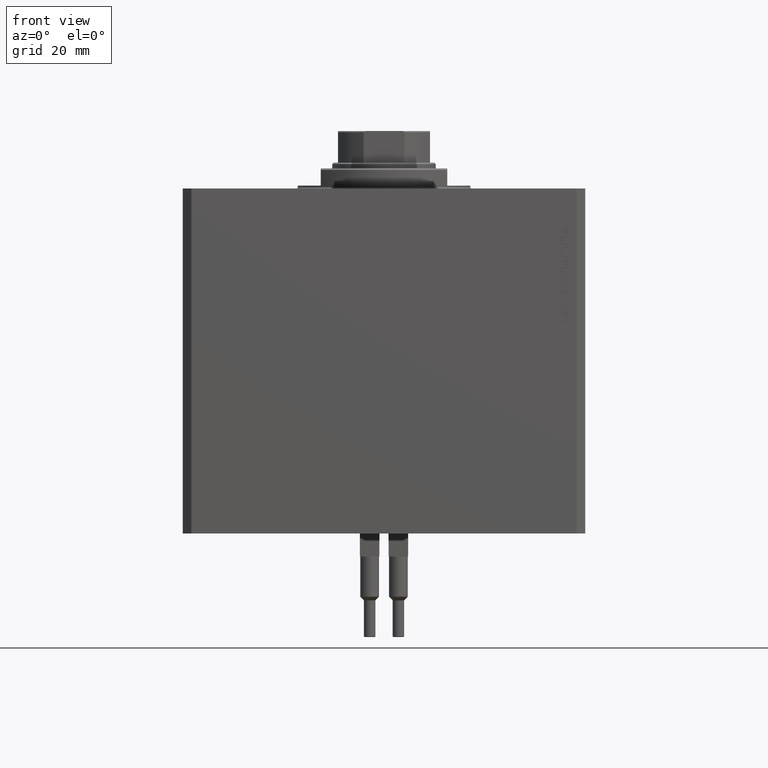
[diagram: clean part render]
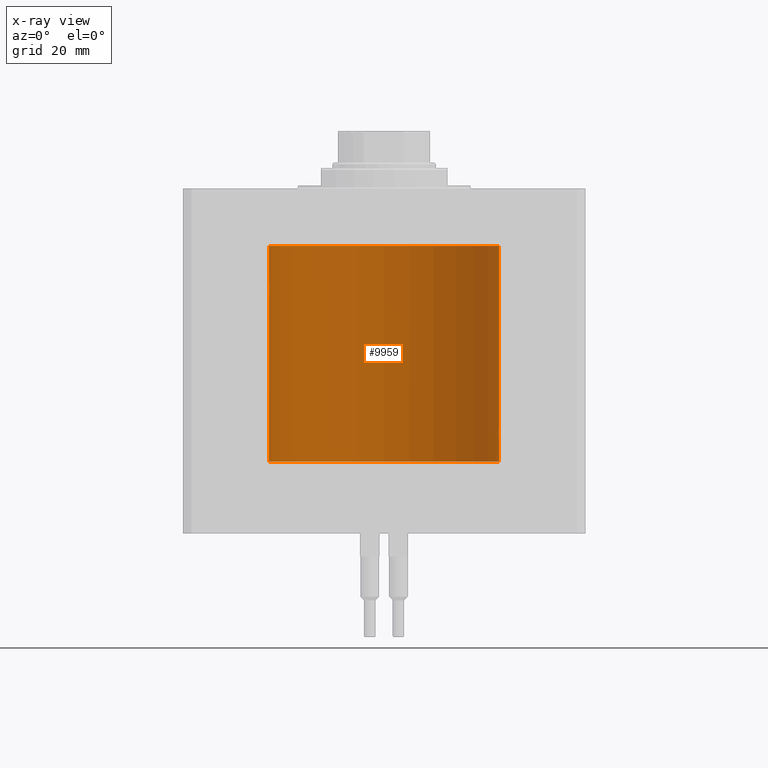
[diagram: x-ray — body ghosted, one internal face saturated and labeled with its STEP entity id]
A machine part, front view, then the same camera in x-ray: the body is ghosted and one INTERNAL B-rep face — a face not visible from any outside direction — is saturated and labeled: STEP entity #9959.
In plain terms, the highlighted cylindrical surface (partial cylindrical patch) has radius 40 mm, axis along (0, 0, 1).
Its self-contained STEP definition (entity closure, byte-faithful):
#313 = CARTESIAN_POINT ( 'NONE',  ( 40.00000000000000000, -7.123019543693126097E-24, -82.99999999999998579 ) ) ;
#870 = CARTESIAN_POINT ( 'NONE',  ( -39.96843077430287394, 1.590532281203076215, -36.21950461315501002 ) ) ;
#1033 = EDGE_CURVE ( 'NONE', #13867, #18875, #9057, .T. ) ;
#1115 = CARTESIAN_POINT ( 'NONE',  ( -39.97824670274066960, 1.322236164346118237, -33.49377550898345390 ) ) ;
#1345 = CARTESIAN_POINT ( 'NONE',  ( -39.98755980670525645, 1.003394358445550694, -36.73498561931656781 ) ) ;
#1843 = DIRECTION ( 'NONE',  ( 1.000000000000000000, 0.000000000000000000, 0.000000000000000000 ) ) ;
#2130 = LINE ( 'NONE', #16945, #42533 ) ;
#2531 = CARTESIAN_POINT ( 'NONE',  ( 39.99999999999999289, 0.1321969090936832014, -87.00000000000001421 ) ) ;
#2768 = CARTESIAN_POINT ( 'NONE',  ( 39.98759288254257172, 1.002119990237823499, -86.73575586470111887 ) ) ;
#3020 = CARTESIAN_POINT ( 'NONE',  ( 39.94996871087634105, 2.000000000000458300, -84.99999999999998579 ) ) ;
#3258 = VERTEX_POINT ( 'NONE', #35564 ) ;
#3835 = CARTESIAN_POINT ( 'NONE',  ( 40.00000000000000000, 0.000000000000000000, -95.00000000000000000 ) ) ;
#3885 = B_SPLINE_CURVE_WITH_KNOTS ( 'NONE', 3,
 ( #41900, #46042, #45545, #5243, #12286, #27582, #23207, #5006, #1115, #5490, #41657, #15925, #46281, #8642, #30737, #42387, #23938, #16163, #35096, #870, #23449, #19809, #8395, #1345, #34137, #30973, #30503, #42627, #12528, #31468 ),
 .UNSPECIFIED., .F., .F.,
 ( 4, 2, 2, 2, 2, 2, 2, 2, 2, 2, 2, 2, 2, 2, 4 ),
 ( 3.087105484439743043E-19, 0.0003908679763826832377, 0.0007817359527653661502, 0.001172603929148049009, 0.001563471905530731867, 0.002345207858296083706, 0.003126943811061435544, 0.003517811787444111681, 0.003908679763826786516, 0.004299547740209463086, 0.004690415716592138788, 0.005081283692974815358, 0.005472151669357490193, 0.005863019645740165896, 0.006253887622122840731 ),
 .UNSPECIFIED. ) ;
#4066 = ORIENTED_EDGE ( 'NONE', *, *, #10938, .T. ) ;
#5006 = CARTESIAN_POINT ( 'NONE',  ( -39.98155931191828927, 1.219319673654558844, -33.40929441127704536 ) ) ;
#5171 = AXIS2_PLACEMENT_3D ( 'NONE', #15923, #34380, #1843 ) ;
#5243 = CARTESIAN_POINT ( 'NONE',  ( -39.99685289554154366, 0.5177847365437173721, -33.06379604364708769 ) ) ;
#5490 = CARTESIAN_POINT ( 'NONE',  ( -39.96845582698919941, 1.598940400393649819, -33.77058047739597413 ) ) ;
#6402 = ORIENTED_EDGE ( 'NONE', *, *, #21208, .T. ) ;
#6409 = EDGE_CURVE ( 'NONE', #31013, #42362, #2130, .T. ) ;
#6442 = VECTOR ( 'NONE', #30565, 1000.000000000000000 ) ;
#6452 = AXIS2_PLACEMENT_3D ( 'NONE', #30622, #42278, #20171 ) ;
#6652 = CARTESIAN_POINT ( 'NONE',  ( 40.00000000000000000, 3.022137594547156248E-17, -87.00000000000000000 ) ) ;
#6881 = CARTESIAN_POINT ( 'NONE',  ( 39.99934513831946958, 0.2621798624261794664, -86.98702196541452736 ) ) ;
#7120 = CARTESIAN_POINT ( 'NONE',  ( 39.94996871087634105, 2.000000000000458300, -84.99999999999998579 ) ) ;
#7139 = B_SPLINE_CURVE_WITH_KNOTS ( 'NONE', 3,
 ( #6652, #2531, #6881, #29211, #21449, #32861, #2768, #17810, #24610, #25324, #43552, #24851, #20968, #7120 ),
 .UNSPECIFIED., .F., .F.,
 ( 4, 2, 2, 2, 2, 2, 4 ),
 ( 2.936885669105128817E-20, 0.0003909569690053489718, 0.0007819139380106978352, 0.001172870907016046373, 0.001563827876021395020, 0.002345741814032091879, 0.003127655752042789172 ),
 .UNSPECIFIED. ) ;
#7535 = CARTESIAN_POINT ( 'NONE',  ( -40.00000000000000000, 4.898587196589413026E-15, -95.00000000000000000 ) ) ;
#7605 = CARTESIAN_POINT ( 'NONE',  ( 39.99934021390485839, 0.2630606439975807787, -83.01307548577453588 ) ) ;
#8224 = CARTESIAN_POINT ( 'NONE',  ( 40.00000000000000000, 0.000000000000000000, -95.00000000000000000 ) ) ;
#8395 = CARTESIAN_POINT ( 'NONE',  ( -39.98153721162278629, 1.220008905300839608, -36.59014263787319976 ) ) ;
#8642 = CARTESIAN_POINT ( 'NONE',  ( -39.94996638891713303, 2.000046381102384974, -35.12975685824790872 ) ) ;
#8869 = VERTEX_POINT ( 'NONE', #44566 ) ;
#8915 = CARTESIAN_POINT ( 'NONE',  ( 40.00000000000000000, 0.000000000000000000, -20.00000000000000355 ) ) ;
#9057 = CIRCLE ( 'NONE', #5171, 40.00000000000000000 ) ;
#9959 = ADVANCED_FACE ( 'NONE', ( #26838 ), #22961, .F. ) ;
#10938 = EDGE_CURVE ( 'NONE', #31013, #8869, #3885, .T. ) ;
#11138 = DIRECTION ( 'NONE',  ( -0.000000000000000000, -0.000000000000000000, 1.000000000000000000 ) ) ;
#11485 = CARTESIAN_POINT ( 'NONE',  ( 39.96241579707638181, 1.735101203729181307, -83.99680496632646509 ) ) ;
#11973 = CARTESIAN_POINT ( 'NONE',  ( 39.97168791869498250, 1.507609851330703465, -83.67919067321091120 ) ) ;
#11975 = B_SPLINE_CURVE_WITH_KNOTS ( 'NONE', 3,
 ( #3020, #17827, #32637, #47458, #29229, #44990, #11485, #30170, #11973, #26770, #18765, #25815, #18522, #33577, #41578, #7605, #41346, #313 ),
 .UNSPECIFIED., .F., .F.,
 ( 4, 2, 2, 2, 2, 2, 2, 2, 4 ),
 ( 0.003127655752042789172, 0.003518434735802910326, 0.003909213719563031479, 0.004299992703323152199, 0.004690771687083273786, 0.005081550670843395373, 0.005472329654603516093, 0.005863108638363636813, 0.006253887622123758400 ),
 .UNSPECIFIED. ) ;
#12250 = VERTEX_POINT ( 'NONE', #28750 ) ;
#12286 = CARTESIAN_POINT ( 'NONE',  ( -39.99498566902682484, 0.6448208412979499204, -33.10226605812628264 ) ) ;
#12528 = CARTESIAN_POINT ( 'NONE',  ( -39.99999999999999289, 0.1305408908116475475, -36.99999999999998579 ) ) ;
#13646 = ORIENTED_EDGE ( 'NONE', *, *, #45273, .F. ) ;
#13867 = VERTEX_POINT ( 'NONE', #33221 ) ;
#13873 = EDGE_LOOP ( 'NONE', ( #13646, #36845, #31896, #46596, #45621, #43916, #6402, #46845, #4066 ) ) ;
#14090 = CARTESIAN_POINT ( 'NONE',  ( -40.00000000000000000, 4.898587196589413026E-15, -95.00000000000000000 ) ) ;
#14581 = CARTESIAN_POINT ( 'NONE',  ( -40.00000000000000000, 3.176717991102973922E-16, -32.99999999999999289 ) ) ;
#15923 = CARTESIAN_POINT ( 'NONE',  ( 0.000000000000000000, 0.000000000000000000, -95.00000000000000000 ) ) ;
#15925 = CARTESIAN_POINT ( 'NONE',  ( -39.95269218207678819, 1.947396949689283119, -34.47509777723391977 ) ) ;
#15989 = LINE ( 'NONE', #8224, #6442 ) ;
#16155 = DIRECTION ( 'NONE',  ( -0.000000000000000000, -0.000000000000000000, 1.000000000000000000 ) ) ;
#16163 = CARTESIAN_POINT ( 'NONE',  ( -39.95960167186748890, 1.797984772084965543, -35.88567634638035742 ) ) ;
#16945 = CARTESIAN_POINT ( 'NONE',  ( -40.00000000000000000, 4.898587196589413026E-15, -95.00000000000000000 ) ) ;
#17810 = CARTESIAN_POINT ( 'NONE',  ( 39.98155206755719604, 1.219558643123237696, -86.59052494877072093 ) ) ;
#17827 = CARTESIAN_POINT ( 'NONE',  ( 39.94996871087634815, 2.000000000000458300, -84.86955743139924380 ) ) ;
#18522 = CARTESIAN_POINT ( 'NONE',  ( 39.99036315117484719, 0.8863074176598244591, -83.20231909422288652 ) ) ;
#18643 = VECTOR ( 'NONE', #11138, 1000.000000000000000 ) ;
#18765 = CARTESIAN_POINT ( 'NONE',  ( 39.98154439070758315, 1.219772309801767651, -83.40967826248693484 ) ) ;
#18875 = VERTEX_POINT ( 'NONE', #7535 ) ;
#19809 = CARTESIAN_POINT ( 'NONE',  ( -39.97828381824886890, 1.321191049141055895, -36.50727762807592569 ) ) ;
#20171 = DIRECTION ( 'NONE',  ( 1.000000000000000000, 0.000000000000000000, 0.000000000000000000 ) ) ;
#20968 = CARTESIAN_POINT ( 'NONE',  ( 39.94996871087634105, 2.000000000000458300, -85.26100396064657616 ) ) ;
#21208 = EDGE_CURVE ( 'NONE', #28140, #42362, #39783, .T. ) ;
#21449 = CARTESIAN_POINT ( 'NONE',  ( 39.99498341981901461, 0.6449644383382160395, -86.89768711383446487 ) ) ;
#22961 = CYLINDRICAL_SURFACE ( 'NONE', #47316, 40.00000000000000000 ) ;
#23207 = CARTESIAN_POINT ( 'NONE',  ( -39.98759801293407179, 1.001913486779978824, -33.26412727956110871 ) ) ;
#23449 = CARTESIAN_POINT ( 'NONE',  ( -39.97167824115165757, 1.507866514858795748, -36.32051891686420220 ) ) ;
#23938 = CARTESIAN_POINT ( 'NONE',  ( -39.95496761534566588, 1.898177513206617872, -35.64350132831550155 ) ) ;
#24278 = EDGE_CURVE ( 'NONE', #3258, #43527, #11975, .T. ) ;
#24610 = CARTESIAN_POINT ( 'NONE',  ( 39.97823849595685175, 1.322484529437312650, -86.50600888624524032 ) ) ;
#24851 = CARTESIAN_POINT ( 'NONE',  ( 39.95268414756683484, 1.947559645210714674, -85.52432767386868306 ) ) ;
#25324 = CARTESIAN_POINT ( 'NONE',  ( 39.96844549051295559, 1.599199597524137317, -86.22909439486065253 ) ) ;
#25815 = CARTESIAN_POINT ( 'NONE',  ( 39.98756496795039794, 1.003187065221004648, -83.26489670948993194 ) ) ;
#26596 = DIRECTION ( 'NONE',  ( 1.000000000000000000, 0.000000000000000000, 0.000000000000000000 ) ) ;
#26770 = CARTESIAN_POINT ( 'NONE',  ( 39.97829218842755949, 1.320937632928927741, -83.49250256667733083 ) ) ;
#26838 = FACE_OUTER_BOUND ( 'NONE', #13873, .T. ) ;
#27582 = CARTESIAN_POINT ( 'NONE',  ( -39.99034680283174481, 0.8870373003876257378, -33.20268175905523123 ) ) ;
#28140 = VERTEX_POINT ( 'NONE', #8915 ) ;
#28750 = CARTESIAN_POINT ( 'NONE',  ( 40.00000000000000000, 3.022137594547156248E-17, -87.00000000000000000 ) ) ;
#29211 = CARTESIAN_POINT ( 'NONE',  ( 39.99685149082506541, 0.5179001791355952733, -86.93617508912632275 ) ) ;
#29229 = CARTESIAN_POINT ( 'NONE',  ( 39.95497632853201964, 1.897994695932949671, -84.35596494936800127 ) ) ;
#30170 = CARTESIAN_POINT ( 'NONE',  ( 39.96844091090332540, 1.590277861643260238, -83.78016690258999688 ) ) ;
#30503 = CARTESIAN_POINT ( 'NONE',  ( -39.99683256694736144, 0.5194325103739407812, -36.93578600311449378 ) ) ;
#30565 = DIRECTION ( 'NONE',  ( -0.000000000000000000, -0.000000000000000000, 1.000000000000000000 ) ) ;
#30622 = CARTESIAN_POINT ( 'NONE',  ( 0.000000000000000000, 0.000000000000000000, -20.00000000000000355 ) ) ;
#30737 = CARTESIAN_POINT ( 'NONE',  ( -39.95062375609131777, 1.987036815800614642, -35.26227773012374911 ) ) ;
#30973 = CARTESIAN_POINT ( 'NONE',  ( -39.99499715356421348, 0.6441229686298113322, -36.89797557273014661 ) ) ;
#31013 = VERTEX_POINT ( 'NONE', #14581 ) ;
#31468 = CARTESIAN_POINT ( 'NONE',  ( -40.00000000000000000, 4.898587189460959019E-15, -37.00000000000000000 ) ) ;
#31896 = ORIENTED_EDGE ( 'NONE', *, *, #39834, .T. ) ;
#32538 = LINE ( 'NONE', #14090, #44406 ) ;
#32637 = CARTESIAN_POINT ( 'NONE',  ( 39.95062818562870888, 1.986948187989950876, -84.73706829020871112 ) ) ;
#32861 = CARTESIAN_POINT ( 'NONE',  ( 39.99034271445660949, 0.8872245818428182718, -86.79722787929314620 ) ) ;
#33221 = CARTESIAN_POINT ( 'NONE',  ( 40.00000000000000000, 0.000000000000000000, -95.00000000000000000 ) ) ;
#33577 = CARTESIAN_POINT ( 'NONE',  ( 39.99499935316635657, 0.6439817867486670178, -83.10197867874718725 ) ) ;
#34137 = CARTESIAN_POINT ( 'NONE',  ( -39.99035901532459292, 0.8864973422255639779, -36.79758953480038031 ) ) ;
#34380 = DIRECTION ( 'NONE',  ( 0.000000000000000000, 0.000000000000000000, 1.000000000000000000 ) ) ;
#35096 = CARTESIAN_POINT ( 'NONE',  ( -39.96240535388719906, 1.735341415802265086, -36.00278343108410439 ) ) ;
#35564 = CARTESIAN_POINT ( 'NONE',  ( 39.94996871087634105, 2.000000000000458300, -84.99999999999998579 ) ) ;
#35690 = DIRECTION ( 'NONE',  ( -0.000000000000000000, -0.000000000000000000, 1.000000000000000000 ) ) ;
#36346 = DIRECTION ( 'NONE',  ( -0.000000000000000000, -0.000000000000000000, 1.000000000000000000 ) ) ;
#36845 = ORIENTED_EDGE ( 'NONE', *, *, #1033, .F. ) ;
#37337 = LINE ( 'NONE', #3835, #18643 ) ;
#39783 = CIRCLE ( 'NONE', #6452, 40.00000000000000000 ) ;
#39834 = EDGE_CURVE ( 'NONE', #13867, #12250, #37337, .T. ) ;
#41214 = CARTESIAN_POINT ( 'NONE',  ( 40.00000000000000000, -7.123019543693126097E-24, -82.99999999999998579 ) ) ;
#41265 = CARTESIAN_POINT ( 'NONE',  ( -40.00000000000000000, 4.898587196589413026E-15, -20.00000000000000355 ) ) ;
#41346 = CARTESIAN_POINT ( 'NONE',  ( 40.00000000000000000, 0.1305111693278485918, -82.99999999999994316 ) ) ;
#41578 = CARTESIAN_POINT ( 'NONE',  ( 39.99683397345101810, 0.5193173888100585112, -83.06418508701626990 ) ) ;
#41657 = CARTESIAN_POINT ( 'NONE',  ( -39.96191547756571794, 1.747935593588226810, -33.99372052401368194 ) ) ;
#41900 = CARTESIAN_POINT ( 'NONE',  ( -40.00000000000000000, 3.176717991102973922E-16, -32.99999999999999289 ) ) ;
#42278 = DIRECTION ( 'NONE',  ( 0.000000000000000000, 0.000000000000000000, 1.000000000000000000 ) ) ;
#42362 = VERTEX_POINT ( 'NONE', #41265 ) ;
#42379 = CARTESIAN_POINT ( 'NONE',  ( 0.000000000000000000, 0.000000000000000000, -95.00000000000000000 ) ) ;
#42387 = CARTESIAN_POINT ( 'NONE',  ( -39.95313149897170746, 1.935958995947111294, -35.51881372483516941 ) ) ;
#42533 = VECTOR ( 'NONE', #36346, 1000.000000000000000 ) ;
#42627 = CARTESIAN_POINT ( 'NONE',  ( -39.99933990797904926, 0.2631205944229108584, -36.98691850247509905 ) ) ;
#42850 = EDGE_CURVE ( 'NONE', #12250, #3258, #7139, .T. ) ;
#43527 = VERTEX_POINT ( 'NONE', #41214 ) ;
#43552 = CARTESIAN_POINT ( 'NONE',  ( 39.96190461752344447, 1.748181485672914093, -86.00586757298763985 ) ) ;
#43916 = ORIENTED_EDGE ( 'NONE', *, *, #45484, .T. ) ;
#44406 = VECTOR ( 'NONE', #35690, 1000.000000000000000 ) ;
#44566 = CARTESIAN_POINT ( 'NONE',  ( -40.00000000000000000, 4.898587189460959019E-15, -37.00000000000000000 ) ) ;
#44990 = CARTESIAN_POINT ( 'NONE',  ( 39.95961195549606515, 1.797756837149760978, -84.11386492750068555 ) ) ;
#45273 = EDGE_CURVE ( 'NONE', #18875, #8869, #32538, .T. ) ;
#45484 = EDGE_CURVE ( 'NONE', #43527, #28140, #15989, .T. ) ;
#45545 = CARTESIAN_POINT ( 'NONE',  ( -39.99934543628835826, 0.2621206772944133512, -33.01297218325230887 ) ) ;
#45621 = ORIENTED_EDGE ( 'NONE', *, *, #24278, .T. ) ;
#46042 = CARTESIAN_POINT ( 'NONE',  ( -40.00000000000000000, 0.1321668174197086765, -32.99999999999998579 ) ) ;
#46281 = CARTESIAN_POINT ( 'NONE',  ( -39.94997337387901126, 1.999906856589179771, -34.73834748183895726 ) ) ;
#46596 = ORIENTED_EDGE ( 'NONE', *, *, #42850, .T. ) ;
#46845 = ORIENTED_EDGE ( 'NONE', *, *, #6409, .F. ) ;
#47316 = AXIS2_PLACEMENT_3D ( 'NONE', #42379, #16155, #26596 ) ;
#47458 = CARTESIAN_POINT ( 'NONE',  ( 39.95313906850238794, 1.935803218567043738, -84.48061374223441078 ) ) ;